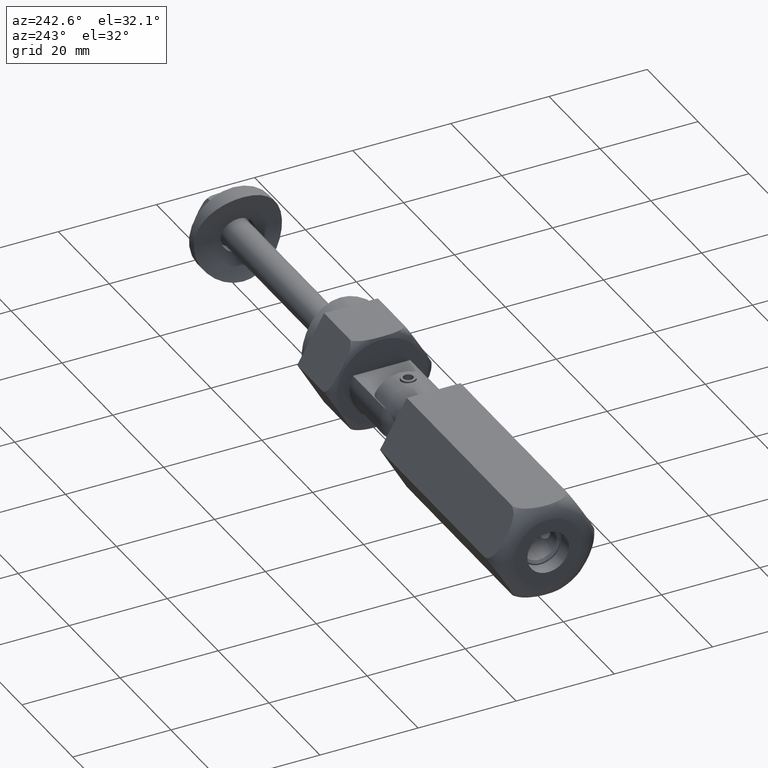
[diagram: clean part render]
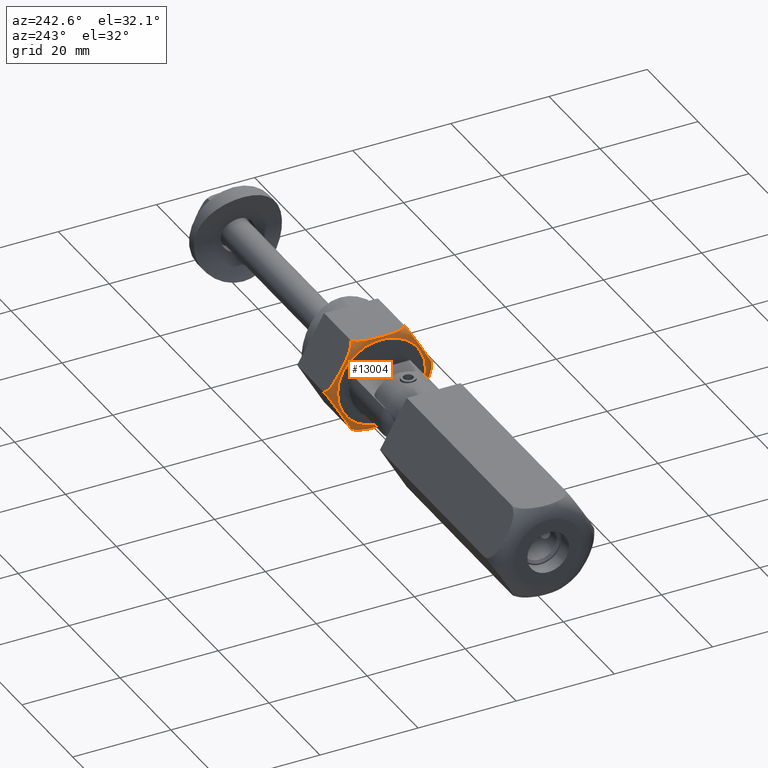
[diagram: same view with one face highlighted and labeled with its STEP entity id]
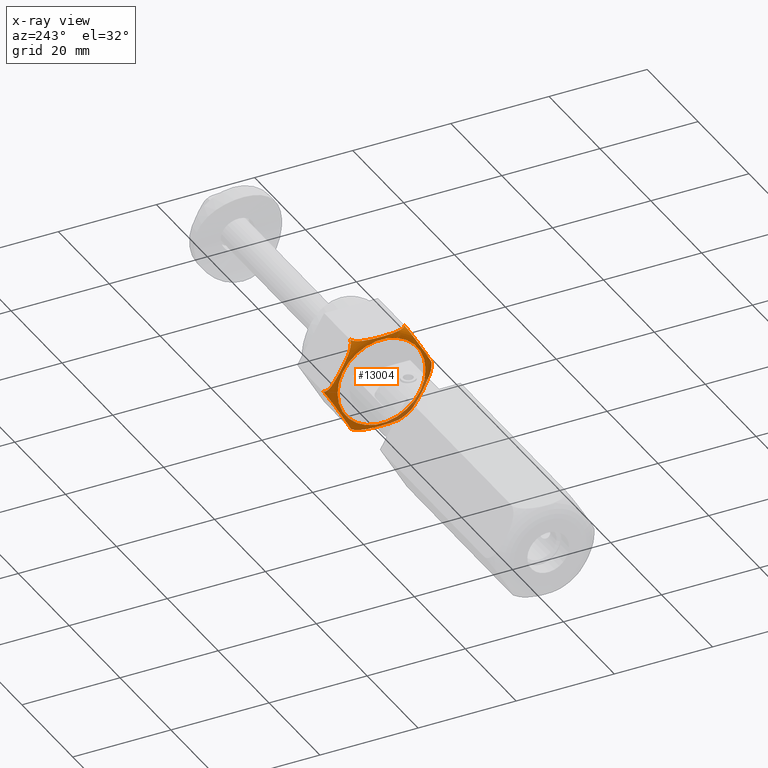
[diagram: x-ray of the same camera — body ghosted, the highlighted face saturated]
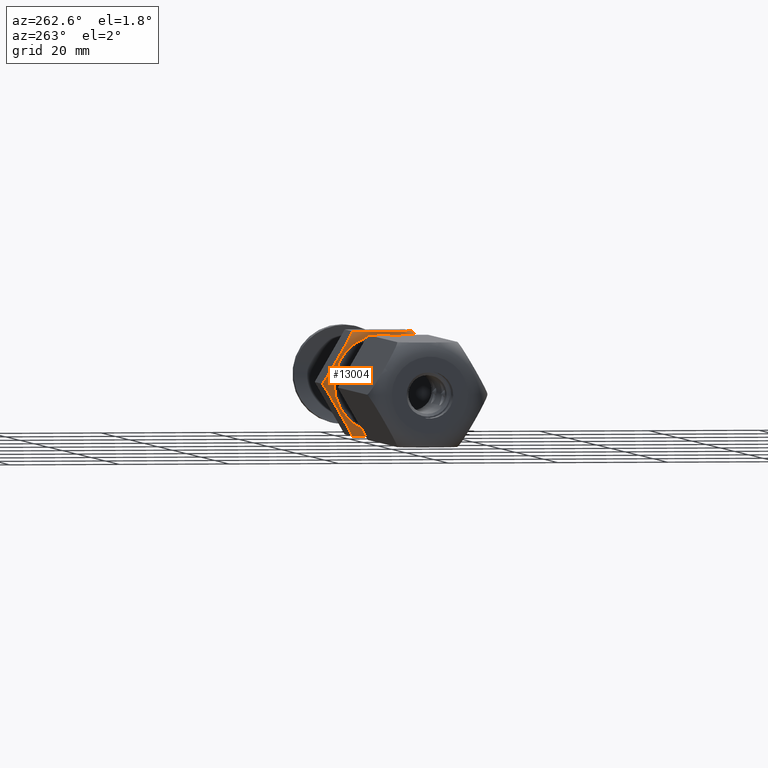
[diagram: same view with one face highlighted and labeled with its STEP entity id]
A machine part, auxiliary view. The second image highlights one B-rep face of the part: STEP entity #13004.
The next image is the same camera in x-ray: the body ghosted, the highlighted face saturated — about 15% of this face is hidden behind the body in this view.
A second angle (auxiliary view) of the same face is appended — the face is thin or edge-on in the first view.
In plain terms, the highlighted toroidal blend (fillet) surface has major radius 8.9697 mm and minor (blend) radius 2 mm.
Its self-contained STEP definition (entity closure, byte-faithful):
#15 = CARTESIAN_POINT ( 'NONE',  ( -9.500000000000003553, -5.484827557301452217, 10.00000000000000178 ) ) ;
#35 = DIRECTION ( 'NONE',  ( 1.873544649899895331E-30, -1.000000000000000000, 1.933991278162539487E-16 ) ) ;
#166 = CARTESIAN_POINT ( 'NONE',  ( 9.500000000000003553, -5.484827557301452217, 10.00000000000000178 ) ) ;
#289 = EDGE_CURVE ( 'NONE', #10608, #5102, #946, .T. ) ;
#311 = CARTESIAN_POINT ( 'NONE',  ( 9.500000000000005329, 5.484827557301866108, 10.13299068077875020 ) ) ;
#343 = CARTESIAN_POINT ( 'NONE',  ( -0.1658821027371391865, -10.87388303793384381, 10.61818887033521541 ) ) ;
#402 = CARTESIAN_POINT ( 'NONE',  ( -5.649394348940254496, -7.707975766483879276, 11.91821024608994684 ) ) ;
#661 = CARTESIAN_POINT ( 'NONE',  ( 0.000000000000000000, 1.734723475976820899E-15, 10.00000000000000178 ) ) ;
#758 = CARTESIAN_POINT ( 'NONE',  ( -9.500000000000000000, 4.125143150814394311, 11.44828971366972503 ) ) ;
#884 = EDGE_CURVE ( 'NONE', #17068, #9217, #6788, .T. ) ;
#946 = B_SPLINE_CURVE_WITH_KNOTS ( 'NONE', 3,
 ( #5994, #17103, #2786, #12630, #7401, #17167, #4218, #8693, #18044, #9680, #17040, #1323, #12979, #402, #4110, #11100, #13887, #2727, #5936, #8399, #5528, #13949, #6929, #16672, #15632, #343, #1794, #8340, #3144, #6256 ),
 .UNSPECIFIED., .F., .F.,
 ( 4, 2, 2, 2, 2, 2, 2, 2, 2, 2, 2, 2, 2, 2, 4 ),
 ( 1.969591725494877418E-07, 0.0003952753807345897965, 0.0007903538022966301053, 0.001580510645420713650, 0.002370667488544796978, 0.003160824331668880740, 0.004741138017917046962, 0.006321451704165214486, 0.007901765390413380274, 0.009482079076661547798, 0.01027223591978563069, 0.01106239276290971185, 0.01185254960603379301, 0.01224762802759583359, 0.01264270644915787070 ),
 .UNSPECIFIED. ) ;
#982 = CARTESIAN_POINT ( 'NONE',  ( 1.169984511393022064, 10.29416424200243796, 11.44500298372939007 ) ) ;
#1035 = CARTESIAN_POINT ( 'NONE',  ( 3.839100725947918846, 8.753149277030784603, 11.91782240567439466 ) ) ;
#1057 = B_SPLINE_CURVE_WITH_KNOTS ( 'NONE', 3,
 ( #9535, #12421, #2692, #16576, #12486, #2579, #3962, #17953, #5372, #15130, #8191, #11008, #5495, #13806, #5433, #8248, #9655, #6898, #3222, #1699, #17261, #14388, #13005, #17069, #4610, #11476, #4483, #11660, #2813, #10180, #17004, #7363, #311, #14270 ),
 .UNSPECIFIED., .F., .F.,
 ( 4, 2, 2, 2, 2, 2, 2, 2, 2, 2, 2, 2, 2, 2, 2, 2, 4 ),
 ( 0.01857099641490357611, 0.01895853181750300695, 0.01934606722010244126, 0.01973360262270187210, 0.02012113802530130294, 0.02089620883050016809, 0.02167127963569903323, 0.02322142124609676353, 0.02399649205129562868, 0.02477156285649449036, 0.02632170446689222065, 0.02787184607728994748, 0.02864691688248881263, 0.02942198768768767431, 0.03019705849288653599, 0.03058459389548596682, 0.03097212929808539766 ),
 .UNSPECIFIED. ) ;
#1169 = CARTESIAN_POINT ( 'NONE',  ( -1.181243662208775413, 10.28766376824814799, 11.45004439842704258 ) ) ;
#1288 = CARTESIAN_POINT ( 'NONE',  ( 7.806255641895609837E-15, 10.96965511460292220, 10.00000000000000178 ) ) ;
#1323 = CARTESIAN_POINT ( 'NONE',  ( -7.000404198993338767, -6.927969865877898314, 11.81164600213924132 ) ) ;
#1402 = CARTESIAN_POINT ( 'NONE',  ( -0.5732801973704011456, 10.63867163833003993, 11.09352661582058275 ) ) ;
#1608 = CARTESIAN_POINT ( 'NONE',  ( 6.563988900393465720, -7.179934356003054852, 11.85829195902210209 ) ) ;
#1623 = CARTESIAN_POINT ( 'NONE',  ( 2.948357487886922979, -9.267420125304159484, 11.85946668466850973 ) ) ;
#1683 = CARTESIAN_POINT ( 'NONE',  ( 0.5732801973704018117, -10.63867163833003460, 11.09352661582057564 ) ) ;
#1699 = CARTESIAN_POINT ( 'NONE',  ( 9.500000000000001776, 0.5290473359081402371, 11.92826226710726978 ) ) ;
#1794 = CARTESIAN_POINT ( 'NONE',  ( -0.1065158824119455117, -10.90815814121936711, 10.50616458219464810 ) ) ;
#1910 = ORIENTED_EDGE ( 'NONE', *, *, #10591, .T. ) ;
#2196 = CARTESIAN_POINT ( 'NONE',  ( 9.391332762082592822, 5.547566616365181780, 10.51096866074481184 ) ) ;
#2330 = EDGE_CURVE ( 'NONE', #10419, #5575, #1057, .T. ) ;
#2400 = CARTESIAN_POINT ( 'NONE',  ( -9.499999999999996447, 0.2507175328487242227, 11.92847003835742292 ) ) ;
#2443 = CARTESIAN_POINT ( 'NONE',  ( 0.1658821027371622236, 10.87388303793385269, 10.61818887033519943 ) ) ;
#2577 = CARTESIAN_POINT ( 'NONE',  ( -7.016375749902081793, 6.918748686661409408, 11.80944225031881345 ) ) ;
#2579 = CARTESIAN_POINT ( 'NONE',  ( 9.500000000000001776, -5.124821269657942935, 10.82708440335645861 ) ) ;
#2689 = CARTESIAN_POINT ( 'NONE',  ( -8.936578034186762665, 5.810119380931117128, 11.08564774292462651 ) ) ;
#2692 = CARTESIAN_POINT ( 'NONE',  ( 9.500000000000000000, -5.457891616453397710, 10.26364160934124570 ) ) ;
#2727 = CARTESIAN_POINT ( 'NONE',  ( -2.936011099606518737, -9.274548315901329332, 11.85829195902211453 ) ) ;
#2750 = CARTESIAN_POINT ( 'NONE',  ( -2.948357487886929196, 9.267420125304159484, 11.85946668466851506 ) ) ;
#2786 = CARTESIAN_POINT ( 'NONE',  ( -9.476698668191080088, -5.498280587493810323, 10.26401890429811203 ) ) ;
#2811 = CARTESIAN_POINT ( 'NONE',  ( -0.3864712770007672771, 10.74652581879247215, 10.93279771862619931 ) ) ;
#2813 = CARTESIAN_POINT ( 'NONE',  ( 9.500000000000000000, 5.037181874790387148, 10.93441831032562739 ) ) ;
#2850 = CARTESIAN_POINT ( 'NONE',  ( 7.680642201204809005, -6.535234272188143123, 11.66489135380609099 ) ) ;
#2979 = CARTESIAN_POINT ( 'NONE',  ( 0.02330133180896246797, -10.95620208441053833, 10.26401890429809605 ) ) ;
#3034 = CARTESIAN_POINT ( 'NONE',  ( 0.3864712770007704967, -10.74652581879246682, 10.93279771862620287 ) ) ;
#3144 = CARTESIAN_POINT ( 'NONE',  ( 2.674167717776553178E-14, -10.96965511460288845, 10.13272897949968154 ) ) ;
#3222 = CARTESIAN_POINT ( 'NONE',  ( 9.500000000000001776, -0.2507175328486965227, 11.92847003835742470 ) ) ;
#3488 = CARTESIAN_POINT ( 'NONE',  ( -9.499999999999998224, -5.289203700992483270, 10.62443085539259258 ) ) ;
#3533 = CARTESIAN_POINT ( 'NONE',  ( -8.458740912265442366E-16, -10.96965511460292042, 10.00000000000000888 ) ) ;
#3551 = CARTESIAN_POINT ( 'NONE',  ( -9.499999999999996447, -5.359079409997257848, 10.51121772928335574 ) ) ;
#3595 = CARTESIAN_POINT ( 'NONE',  ( 4.291819203077502642, 8.491772142392902012, 11.92829858589939285 ) ) ;
#3654 = CARTESIAN_POINT ( 'NONE',  ( 1.600318389884161974, 10.04571086141416458, 11.60465455900880727 ) ) ;
#3728 = CARTESIAN_POINT ( 'NONE',  ( -9.499999999999998224, -1.047752005099189532, 11.91781931539892803 ) ) ;
#3731 = EDGE_CURVE ( 'NONE', #12344, #12344, #18066, .T. ) ;
#3733 = CARTESIAN_POINT ( 'NONE',  ( 1.680504935141154557E-29, -8.969655114602923973, 12.00000000000001243 ) ) ;
#3824 = CARTESIAN_POINT ( 'NONE',  ( 7.806255641895609837E-15, 10.96965511460292220, 10.00000000000000178 ) ) ;
#3872 = FACE_OUTER_BOUND ( 'NONE', #5635, .T. ) ;
#3962 = CARTESIAN_POINT ( 'NONE',  ( 9.500000000000001776, -5.028137507378883875, 10.91961270323325550 ) ) ;
#4028 = CARTESIAN_POINT ( 'NONE',  ( 0.000000000000000000, 1.734723475976820899E-15, 12.00000000000001066 ) ) ;
#4110 = CARTESIAN_POINT ( 'NONE',  ( -5.196409486482185258, -7.969506698762873320, 11.92850409199470718 ) ) ;
#4130 = ORIENTED_EDGE ( 'NONE', *, *, #3731, .F. ) ;
#4218 = CARTESIAN_POINT ( 'NONE',  ( -8.926719802629611067, -5.815811033574326494, 11.09352661582061295 ) ) ;
#4352 = CARTESIAN_POINT ( 'NONE',  ( 0.9690206753403753925, -10.41019076684484190, 11.35117518770044143 ) ) ;
#4406 = CARTESIAN_POINT ( 'NONE',  ( 4.303590513517798755, -8.484975973141512640, 11.92850409199469297 ) ) ;
#4426 = CARTESIAN_POINT ( 'NONE',  ( -9.500000000000000000, 5.484827557301451328, 10.13077843620345142 ) ) ;
#4450 = CARTESIAN_POINT ( 'NONE',  ( 9.119513844951633530, -5.704501341341597254, 10.92654201973941319 ) ) ;
#4483 = CARTESIAN_POINT ( 'NONE',  ( 9.500000000000000000, 4.362014245702686033, 11.35296320504827605 ) ) ;
#4552 = ORIENTED_EDGE ( 'NONE', *, *, #2330, .T. ) ;
#4610 = CARTESIAN_POINT ( 'NONE',  ( 9.500000000000001776, 3.613146068529599297, 11.61102667167255120 ) ) ;
#4880 = CARTESIAN_POINT ( 'NONE',  ( -9.500000000000001776, 2.079325486704882486, 11.85956407593015882 ) ) ;
#4947 = CARTESIAN_POINT ( 'NONE',  ( -9.500000000000001776, -2.081003090834873337, 11.85930006090546662 ) ) ;
#5064 = CARTESIAN_POINT ( 'NONE',  ( 5.649394348940269595, 7.707975766483889046, 11.91821024608994328 ) ) ;
#5077 = CARTESIAN_POINT ( 'NONE',  ( -9.500000000000000000, -5.037181874790388925, 10.93441831032563627 ) ) ;
#5102 = VERTEX_POINT ( 'NONE', #3533 ) ;
#5130 = CARTESIAN_POINT ( 'NONE',  ( -9.499999999999998224, 1.036270980999082436, 11.91322423012082510 ) ) ;
#5233 = CARTESIAN_POINT ( 'NONE',  ( 2.483624250097929309, 9.535733985242977440, 11.80944225031882233 ) ) ;
#5372 = CARTESIAN_POINT ( 'NONE',  ( 9.500000000000001776, -4.713359579045009795, 11.15497760702059082 ) ) ;
#5431 = CARTESIAN_POINT ( 'NONE',  ( -7.680642201204818775, 6.535234272188138682, 11.66489135380609454 ) ) ;
#5433 = CARTESIAN_POINT ( 'NONE',  ( 9.500000000000003553, -2.079325486704869608, 11.85956407593015882 ) ) ;
#5493 = CARTESIAN_POINT ( 'NONE',  ( -4.931129357382995676E-14, 10.96965511460289022, 10.13372363806144882 ) ) ;
#5495 = CARTESIAN_POINT ( 'NONE',  ( 9.500000000000003553, -3.374140253566613623, 11.66714836357255791 ) ) ;
#5528 = CARTESIAN_POINT ( 'NONE',  ( -1.600318389884141546, -10.04571086141415392, 11.60465455900881437 ) ) ;
#5559 = DIRECTION ( 'NONE',  ( -3.532137285691802660E-32, 1.445602896647337931E-16, 1.000000000000000000 ) ) ;
#5575 = VERTEX_POINT ( 'NONE', #7594 ) ;
#5635 = EDGE_LOOP ( 'NONE', ( #4130 ) ) ;
#5725 = CARTESIAN_POINT ( 'NONE',  ( -9.499999999999998224, 5.289953574383708279, 10.62303332752432361 ) ) ;
#5779 = CARTESIAN_POINT ( 'NONE',  ( -9.499999999999996447, 4.370815923867676034, 11.34896284828189827 ) ) ;
#5936 = CARTESIAN_POINT ( 'NONE',  ( -2.483624250097911101, -9.535733985242965005, 11.80944225031883477 ) ) ;
#5994 = CARTESIAN_POINT ( 'NONE',  ( -9.500000000000003553, -5.484827557301452217, 10.00000000000000178 ) ) ;
#6087 = CARTESIAN_POINT ( 'NONE',  ( 9.500000000000003553, 5.484827557301458434, 10.00000000000000178 ) ) ;
#6154 = ORIENTED_EDGE ( 'NONE', *, *, #289, .T. ) ;
#6256 = CARTESIAN_POINT ( 'NONE',  ( -8.458740912265442366E-16, -10.96965511460292042, 10.00000000000000888 ) ) ;
#6290 = CARTESIAN_POINT ( 'NONE',  ( -9.500000000000000000, -5.457177252340527751, 10.26630646300458061 ) ) ;
#6577 = CARTESIAN_POINT ( 'NONE',  ( 0.02249959791435487966, 10.95666496569038095, 10.26022967669229402 ) ) ;
#6716 = CARTESIAN_POINT ( 'NONE',  ( -4.303590513517807636, 8.484975973141505534, 11.92850409199468942 ) ) ;
#6788 = B_SPLINE_CURVE_WITH_KNOTS ( 'NONE', 3,
 ( #1288, #5493, #13970, #15071, #13853, #2811, #1402, #15299, #1169, #12598, #9534, #8124, #2750, #13805, #6716, #13749, #10949, #8189, #2577, #5431, #16463, #11067, #17896, #2689, #18008, #12360, #15182, #16632, #9654, #8306 ),
 .UNSPECIFIED., .F., .F.,
 ( 4, 2, 2, 2, 2, 2, 2, 2, 2, 2, 2, 2, 2, 2, 4 ),
 ( 1.969591725494962651E-07, 0.0003952753807345918565, 0.0007903538022966342252, 0.001580510645420717553, 0.002370667488544800881, 0.003160824331668884209, 0.004741138017917053901, 0.006321451704165223159, 0.007901765390413395887, 0.009482079076661568615, 0.01027223591978565324, 0.01106239276290973787, 0.01185254960603382250, 0.01224762802759586482, 0.01264270644915790540 ),
 .UNSPECIFIED. ) ;
#6898 = CARTESIAN_POINT ( 'NONE',  ( 9.499999999999996447, -0.5138158125260280373, 11.92566080837324805 ) ) ;
#6929 = CARTESIAN_POINT ( 'NONE',  ( -0.9580470941462658763, -10.41652636690118960, 11.34541652004257450 ) ) ;
#6942 = FACE_OUTER_BOUND ( 'NONE', #10255, .T. ) ;
#7050 = CARTESIAN_POINT ( 'NONE',  ( 9.477500402085606623, -5.497817706214038758, 10.26022967669227981 ) ) ;
#7115 = EDGE_CURVE ( 'NONE', #9217, #10608, #14805, .T. ) ;
#7229 = CARTESIAN_POINT ( 'NONE',  ( 0.1086672379174420389, -10.90691605553919530, 10.51096866074480296 ) ) ;
#7363 = CARTESIAN_POINT ( 'NONE',  ( 9.500000000000003553, 5.457177252340531304, 10.26630646300457883 ) ) ;
#7401 = CARTESIAN_POINT ( 'NONE',  ( -9.330242530360049358, -5.582837078095024275, 10.62487409099795954 ) ) ;
#7594 = CARTESIAN_POINT ( 'NONE',  ( 9.500000000000003553, 5.484827557301458434, 10.00000000000000178 ) ) ;
#7866 = CARTESIAN_POINT ( 'NONE',  ( 9.113528722999252096, 5.707956853111911144, 10.93279771862621530 ) ) ;
#7882 = CARTESIAN_POINT ( 'NONE',  ( -9.500000000000001776, 3.628286591201960842, 11.60692640497218520 ) ) ;
#7988 = CARTESIAN_POINT ( 'NONE',  ( 8.530979324659634599, 6.044291905059541392, 11.35117518770046274 ) ) ;
#8044 = CARTESIAN_POINT ( 'NONE',  ( 0.5634219658132312292, 10.64436329097327238, 11.08564774292466559 ) ) ;
#8097 = DIRECTION ( 'NONE',  ( -3.532137285691802660E-32, 1.445602896647337931E-16, 1.000000000000000000 ) ) ;
#8124 = CARTESIAN_POINT ( 'NONE',  ( -2.499595801006658569, 9.526512806026477875, 11.81164600213922888 ) ) ;
#8189 = CARTESIAN_POINT ( 'NONE',  ( -6.563988900393474601, 7.179934356003051299, 11.85829195902209854 ) ) ;
#8191 = CARTESIAN_POINT ( 'NONE',  ( 9.500000000000001776, -4.125143150814381876, 11.44828971366972858 ) ) ;
#8248 = CARTESIAN_POINT ( 'NONE',  ( 9.500000000000000000, -1.297279057749729292, 11.90360101852638053 ) ) ;
#8306 = CARTESIAN_POINT ( 'NONE',  ( -9.499999999999998224, 5.484827557301466427, 10.00000000000000178 ) ) ;
#8340 = CARTESIAN_POINT ( 'NONE',  ( -0.02249959791432860554, -10.95666496569037385, 10.26022967669230113 ) ) ;
#8399 = CARTESIAN_POINT ( 'NONE',  ( -1.819357798795173231, -9.919248399716238396, 11.66489135380611764 ) ) ;
#8581 = CARTESIAN_POINT ( 'NONE',  ( 1.835532337952670234, -9.909910025179684112, 11.66901284663642180 ) ) ;
#8624 = B_SPLINE_CURVE_WITH_KNOTS ( 'NONE', 3,
 ( #6087, #11857, #10802, #2196, #9339, #7866, #9399, #7988, #17577, #14878, #11983, #14813, #17760, #5064, #17699, #3595, #1035, #16147, #5233, #10682, #3654, #982, #9277, #8044, #13373, #2443, #17820, #6577, #12225, #3824 ),
 .UNSPECIFIED., .F., .F.,
 ( 4, 2, 2, 2, 2, 2, 2, 2, 2, 2, 2, 2, 2, 2, 4 ),
 ( 1.969591725494877683E-07, 0.0003952753807345858934, 0.0007903538022966222990, 0.001580510645420703025, 0.002370667488544783534, 0.003160824331668863826, 0.004741138017917020074, 0.006321451704165177189, 0.007901765390413333437, 0.009482079076661490552, 0.01027223591978556998, 0.01106239276290964767, 0.01185254960603372536, 0.01224762802759576767, 0.01264270644915780999 ),
 .UNSPECIFIED. ) ;
#8693 = CARTESIAN_POINT ( 'NONE',  ( -8.530979324659631047, -6.044291905059522740, 11.35117518770046985 ) ) ;
#8701 = CARTESIAN_POINT ( 'NONE',  ( 5.549378705583909493E-14, -10.96965511460288845, 10.13372363806145593 ) ) ;
#9048 = CARTESIAN_POINT ( 'NONE',  ( -9.499999999999994671, 5.028137507378885651, 10.91961270323325550 ) ) ;
#9106 = CARTESIAN_POINT ( 'NONE',  ( -9.500000000000001776, -0.5290473359081147020, 11.92826226710727511 ) ) ;
#9217 = VERTEX_POINT ( 'NONE', #10499 ) ;
#9277 = CARTESIAN_POINT ( 'NONE',  ( 0.9580470941462868595, 10.41652636690119671, 11.34541652004256029 ) ) ;
#9339 = CARTESIAN_POINT ( 'NONE',  ( 9.330242530360045805, 5.582837078095049144, 10.62487409099794533 ) ) ;
#9352 = CARTESIAN_POINT ( 'NONE',  ( -9.499999999999994671, -5.484827557301866996, 10.13299068077874843 ) ) ;
#9399 = CARTESIAN_POINT ( 'NONE',  ( 8.926719802629611067, 5.815811033574344258, 11.09352661582059696 ) ) ;
#9534 = CARTESIAN_POINT ( 'NONE',  ( -1.835532337952676674, 9.909910025179680559, 11.66901284663642357 ) ) ;
#9535 = CARTESIAN_POINT ( 'NONE',  ( 9.500000000000003553, -5.484827557301452217, 10.00000000000000178 ) ) ;
#9654 = CARTESIAN_POINT ( 'NONE',  ( -9.499999999999959144, 5.484827557301525047, 10.13272897949966733 ) ) ;
#9655 = CARTESIAN_POINT ( 'NONE',  ( 9.500000000000000000, -1.036270980999059566, 11.91322423012082510 ) ) ;
#9680 = CARTESIAN_POINT ( 'NONE',  ( -7.884282948800615642, -6.417662231745680401, 11.60944821489947820 ) ) ;
#9966 = CARTESIAN_POINT ( 'NONE',  ( 8.936578034186757336, -5.810119380931118904, 11.08564774292462296 ) ) ;
#9980 = CARTESIAN_POINT ( 'NONE',  ( 2.499595801006651019, -9.526512806026477875, 11.81164600213922533 ) ) ;
#10180 = CARTESIAN_POINT ( 'NONE',  ( 9.500000000000003553, 5.289203700992484158, 10.62443085539259258 ) ) ;
#10255 = EDGE_LOOP ( 'NONE', ( #4552, #16134, #11860, #11208, #6154, #1910 ) ) ;
#10419 = VERTEX_POINT ( 'NONE', #17587 ) ;
#10499 = CARTESIAN_POINT ( 'NONE',  ( -9.499999999999998224, 5.484827557301466427, 10.00000000000000178 ) ) ;
#10518 = CARTESIAN_POINT ( 'NONE',  ( -9.499999999999998224, -3.613146068529590416, 11.61102667167255298 ) ) ;
#10591 = EDGE_CURVE ( 'NONE', #5102, #10419, #17504, .T. ) ;
#10608 = VERTEX_POINT ( 'NONE', #15 ) ;
#10682 = CARTESIAN_POINT ( 'NONE',  ( 1.819357798795192327, 9.919248399716249054, 11.66489135380610875 ) ) ;
#10758 = CARTESIAN_POINT ( 'NONE',  ( -9.500000000000000000, -4.819950451994345464, 11.09556376097754793 ) ) ;
#10802 = CARTESIAN_POINT ( 'NONE',  ( 9.476698668191071206, 5.498280587493835192, 10.26401890429810315 ) ) ;
#10949 = CARTESIAN_POINT ( 'NONE',  ( -5.660899274052093588, 7.701333394873603133, 11.91782240567438755 ) ) ;
#11008 = CARTESIAN_POINT ( 'NONE',  ( 9.500000000000000000, -3.628286591201944855, 11.60692640497217987 ) ) ;
#11067 = CARTESIAN_POINT ( 'NONE',  ( -8.330015488606981933, 6.160318429901947113, 11.44500298372936520 ) ) ;
#11100 = CARTESIAN_POINT ( 'NONE',  ( -4.291819203077478662, -8.491772142392893130, 11.92829858589939462 ) ) ;
#11208 = ORIENTED_EDGE ( 'NONE', *, *, #7115, .T. ) ;
#11209 = CARTESIAN_POINT ( 'NONE',  ( 7.016375749902077352, -6.918748686661411185, 11.80944225031881523 ) ) ;
#11458 = CARTESIAN_POINT ( 'NONE',  ( 1.181243662208770973, -10.28766376824814799, 11.45004439842704080 ) ) ;
#11476 = CARTESIAN_POINT ( 'NONE',  ( 9.500000000000001776, 4.115442575129678815, 11.45208525298511226 ) ) ;
#11660 = CARTESIAN_POINT ( 'NONE',  ( 9.500000000000000000, 4.819950451994345464, 11.09556376097753905 ) ) ;
#11857 = CARTESIAN_POINT ( 'NONE',  ( 9.499999999999978684, 5.484827557301485079, 10.13372363806145771 ) ) ;
#11860 = ORIENTED_EDGE ( 'NONE', *, *, #884, .T. ) ;
#11940 = EDGE_CURVE ( 'NONE', #5575, #17068, #8624, .T. ) ;
#11983 = CARTESIAN_POINT ( 'NONE',  ( 7.664467662047331764, 6.544572646724702736, 11.66901284663643423 ) ) ;
#12000 = CARTESIAN_POINT ( 'NONE',  ( -9.500000000000001776, 2.600874825918309874, 11.81165766095662306 ) ) ;
#12118 = CARTESIAN_POINT ( 'NONE',  ( -9.500000000000001776, 1.297279057749747722, 11.90360101852638408 ) ) ;
#12225 = CARTESIAN_POINT ( 'NONE',  ( -6.988021814847979769E-16, 10.96965511460289555, 10.13272897949967621 ) ) ;
#12344 = VERTEX_POINT ( 'NONE', #3733 ) ;
#12360 = CARTESIAN_POINT ( 'NONE',  ( -9.334117897262800057, 5.580599633970563467, 10.61818887033517278 ) ) ;
#12421 = CARTESIAN_POINT ( 'NONE',  ( 9.500000000000000000, -5.484827557301447776, 10.13077843620344609 ) ) ;
#12486 = CARTESIAN_POINT ( 'NONE',  ( 9.500000000000001776, -5.289953574383703838, 10.62303332752432894 ) ) ;
#12598 = CARTESIAN_POINT ( 'NONE',  ( -1.615717051199385468, 10.03682044015868868, 11.60944821489944978 ) ) ;
#12630 = CARTESIAN_POINT ( 'NONE',  ( -9.391332762082594598, -5.547566616365156911, 10.51096866074482072 ) ) ;
#12691 = CARTESIAN_POINT ( 'NONE',  ( 8.541952905853710476, -6.037956305003198132, 11.34541652004253898 ) ) ;
#12717 = CARTESIAN_POINT ( 'NONE',  ( -9.499999999999998224, 4.713359579045017789, 11.15497760702059082 ) ) ;
#12740 = CARTESIAN_POINT ( 'NONE',  ( 8.330015488606980156, -6.160318429901950665, 11.44500298372936520 ) ) ;
#12753 = CARTESIAN_POINT ( 'NONE',  ( 0.1697574696399776484, -10.87164559380933149, 10.62487409099792934 ) ) ;
#12808 = CARTESIAN_POINT ( 'NONE',  ( 3.850605651059737511, -8.746506905420497802, 11.91821024608993795 ) ) ;
#12871 = CARTESIAN_POINT ( 'NONE',  ( 5.208180796922499134, -7.962710529511486612, 11.92829858589937508 ) ) ;
#12979 = CARTESIAN_POINT ( 'NONE',  ( -6.551642512113065031, -7.187062546600211377, 11.85946668466852927 ) ) ;
#13004 = ADVANCED_FACE ( 'NONE', ( #3872, #6942 ), #14573, .T. ) ;
#13005 = CARTESIAN_POINT ( 'NONE',  ( 9.500000000000003553, 2.595621596405288223, 11.81187618399409445 ) ) ;
#13128 = AXIS2_PLACEMENT_3D ( 'NONE', #4028, #5559, #35 ) ;
#13373 = CARTESIAN_POINT ( 'NONE',  ( 0.3804861550483334409, 10.74998133056280736, 10.92654201973943984 ) ) ;
#13443 = CARTESIAN_POINT ( 'NONE',  ( -9.500000000000000000, -2.595621596405271791, 11.81187618399410155 ) ) ;
#13749 = CARTESIAN_POINT ( 'NONE',  ( -5.208180796922509792, 7.962710529511486612, 11.92829858589938219 ) ) ;
#13805 = CARTESIAN_POINT ( 'NONE',  ( -3.850605651059740620, 8.746506905420494249, 11.91821024608993618 ) ) ;
#13806 = CARTESIAN_POINT ( 'NONE',  ( 9.500000000000003553, -2.600874825918309430, 11.81165766095662129 ) ) ;
#13853 = CARTESIAN_POINT ( 'NONE',  ( -0.1697574696399728744, 10.87164559380933504, 10.62487409099792579 ) ) ;
#13887 = CARTESIAN_POINT ( 'NONE',  ( -3.839100725947899750, -8.753149277030773945, 11.91782240567439821 ) ) ;
#13949 = CARTESIAN_POINT ( 'NONE',  ( -1.169984511393002968, -10.29416424200243085, 11.44500298372940073 ) ) ;
#13970 = CARTESIAN_POINT ( 'NONE',  ( -0.02330133180895586908, 10.95620208441054544, 10.26401890429809249 ) ) ;
#14010 = CARTESIAN_POINT ( 'NONE',  ( 7.899681610115841579, -6.408771810490221377, 11.60465455900878062 ) ) ;
#14119 = CARTESIAN_POINT ( 'NONE',  ( 9.393484117587989957, -5.546324530685045495, 10.50616458219462501 ) ) ;
#14134 = CARTESIAN_POINT ( 'NONE',  ( 1.615717051199379917, -10.03682044015869756, 11.60944821489945689 ) ) ;
#14154 = CARTESIAN_POINT ( 'NONE',  ( -9.499999999999998224, 5.124821269657948264, 10.82708440335646038 ) ) ;
#14254 = CARTESIAN_POINT ( 'NONE',  ( 5.660899274052085595, -7.701333394873609350, 11.91782240567438755 ) ) ;
#14270 = CARTESIAN_POINT ( 'NONE',  ( 9.500000000000003553, 5.484827557301458434, 10.00000000000000178 ) ) ;
#14388 = CARTESIAN_POINT ( 'NONE',  ( 9.500000000000000000, 2.081003090834890656, 11.85930006090545952 ) ) ;
#14527 = CARTESIAN_POINT ( 'NONE',  ( -9.499999999999998224, 5.457891616453402150, 10.26364160934124925 ) ) ;
#14573 = TOROIDAL_SURFACE ( 'NONE', #17509, 8.969655114602890222, 2.000000000000000000 ) ;
#14588 = CARTESIAN_POINT ( 'NONE',  ( -9.499999999999998224, 5.484827557301466427, 10.00000000000000178 ) ) ;
#14652 = CARTESIAN_POINT ( 'NONE',  ( -9.500000000000001776, -3.359755694875479204, 11.67020556384813723 ) ) ;
#14710 = CARTESIAN_POINT ( 'NONE',  ( -9.500000000000000000, -4.115442575129673486, 11.45208525298511759 ) ) ;
#14776 = CARTESIAN_POINT ( 'NONE',  ( -9.499999999999998224, -4.362014245702683368, 11.35296320504828138 ) ) ;
#14805 = B_SPLINE_CURVE_WITH_KNOTS ( 'NONE', 3,
 ( #14588, #4426, #14527, #15908, #5725, #14154, #9048, #15601, #12717, #5779, #758, #7882, #16036, #12000, #4880, #12118, #5130, #16282, #2400, #9106, #3728, #4947, #13443, #14652, #10518, #14710, #14776, #10758, #5077, #3488, #3551, #6290, #9352, #16163 ),
 .UNSPECIFIED., .F., .F.,
 ( 4, 2, 2, 2, 2, 2, 2, 2, 2, 2, 2, 2, 2, 2, 2, 2, 4 ),
 ( 0.01857099641490358652, 0.01895853181750302083, 0.01934606722010245167, 0.01973360262270188598, 0.02012113802530132028, 0.02089620883050018890, 0.02167127963569905405, 0.02322142124609678782, 0.02399649205129565643, 0.02477156285649452158, 0.02632170446689225535, 0.02787184607728998911, 0.02864691688248885426, 0.02942198768768772288, 0.03019705849288659150, 0.03058459389548602581, 0.03097212929808546011 ),
 .UNSPECIFIED. ) ;
#14813 = CARTESIAN_POINT ( 'NONE',  ( 7.000404198993351201, 6.927969865877911637, 11.81164600213923777 ) ) ;
#14878 = CARTESIAN_POINT ( 'NONE',  ( 7.884282948800624524, 6.417662231745696388, 11.60944821489946399 ) ) ;
#15071 = CARTESIAN_POINT ( 'NONE',  ( -0.1086672379174358216, 10.90691605553919885, 10.51096866074479941 ) ) ;
#15130 = CARTESIAN_POINT ( 'NONE',  ( 9.500000000000005329, -4.370815923867674258, 11.34896284828190005 ) ) ;
#15182 = CARTESIAN_POINT ( 'NONE',  ( -9.393484117587989957, 5.546324530685043719, 10.50616458219462679 ) ) ;
#15299 = CARTESIAN_POINT ( 'NONE',  ( -0.9690206753403769468, 10.41019076684484368, 11.35117518770044676 ) ) ;
#15582 = CARTESIAN_POINT ( 'NONE',  ( -8.458740912265442366E-16, -10.96965511460292042, 10.00000000000000888 ) ) ;
#15601 = CARTESIAN_POINT ( 'NONE',  ( -9.500000000000000000, 4.822698219570491496, 11.08309889640788448 ) ) ;
#15632 = CARTESIAN_POINT ( 'NONE',  ( -0.3804861550483099597, -10.74998133056280381, 10.92654201973945050 ) ) ;
#15908 = CARTESIAN_POINT ( 'NONE',  ( -9.499999999999998224, 5.360448292184642582, 10.50866296471581229 ) ) ;
#16036 = CARTESIAN_POINT ( 'NONE',  ( -9.500000000000003553, 3.374140253566622061, 11.66714836357255436 ) ) ;
#16134 = ORIENTED_EDGE ( 'NONE', *, *, #11940, .T. ) ;
#16147 = CARTESIAN_POINT ( 'NONE',  ( 2.936011099606541830, 9.274548315901332884, 11.85829195902210564 ) ) ;
#16163 = CARTESIAN_POINT ( 'NONE',  ( -9.500000000000003553, -5.484827557301452217, 10.00000000000000178 ) ) ;
#16282 = CARTESIAN_POINT ( 'NONE',  ( -9.500000000000000000, 0.5138158125260550158, 11.92566080837324805 ) ) ;
#16463 = CARTESIAN_POINT ( 'NONE',  ( -7.899681610115843355, 6.408771810490220489, 11.60465455900878240 ) ) ;
#16576 = CARTESIAN_POINT ( 'NONE',  ( 9.500000000000000000, -5.360448292184637253, 10.50866296471580696 ) ) ;
#16632 = CARTESIAN_POINT ( 'NONE',  ( -9.477500402085606623, 5.497817706214035205, 10.26022967669228514 ) ) ;
#16672 = CARTESIAN_POINT ( 'NONE',  ( -0.5634219658132111341, -10.64436329097326528, 11.08564774292467270 ) ) ;
#16797 = CARTESIAN_POINT ( 'NONE',  ( 9.334117897262800057, -5.580599633970562579, 10.61818887033516923 ) ) ;
#16913 = CARTESIAN_POINT ( 'NONE',  ( 9.499999999999953815, -5.484827557301528600, 10.13272897949966023 ) ) ;
#17004 = CARTESIAN_POINT ( 'NONE',  ( 9.500000000000005329, 5.359079409997263177, 10.51121772928335396 ) ) ;
#17040 = CARTESIAN_POINT ( 'NONE',  ( -7.664467662047323770, -6.544572646724689413, 11.66901284663644844 ) ) ;
#17068 = VERTEX_POINT ( 'NONE', #17627 ) ;
#17069 = CARTESIAN_POINT ( 'NONE',  ( 9.500000000000001776, 3.359755694875492082, 11.67020556384813190 ) ) ;
#17103 = CARTESIAN_POINT ( 'NONE',  ( -9.499999999999992895, -5.484827557301455769, 10.13372363806145948 ) ) ;
#17167 = CARTESIAN_POINT ( 'NONE',  ( -9.113528722999255649, -5.707956853111891604, 10.93279771862622951 ) ) ;
#17261 = CARTESIAN_POINT ( 'NONE',  ( 9.500000000000000000, 1.047752005099211736, 11.91781931539892625 ) ) ;
#17504 = B_SPLINE_CURVE_WITH_KNOTS ( 'NONE', 3,
 ( #15582, #8701, #2979, #7229, #12753, #3034, #1683, #4352, #11458, #14134, #8581, #9980, #1623, #12808, #4406, #12871, #14254, #1608, #11209, #2850, #14010, #12740, #12691, #9966, #4450, #16797, #14119, #7050, #16913, #166 ),
 .UNSPECIFIED., .F., .F.,
 ( 4, 2, 2, 2, 2, 2, 2, 2, 2, 2, 2, 2, 2, 2, 4 ),
 ( 1.969591725564851869E-07, 0.0003952753807345960849, 0.0007903538022966357431, 0.001580510645420713216, 0.002370667488544790907, 0.003160824331668868163, 0.004741138017917026146, 0.006321451704165184128, 0.007901765390413342111, 0.009482079076661500960, 0.01027223591978557692, 0.01106239276290965287, 0.01185254960603373056, 0.01224762802759576941, 0.01264270644915780652 ),
 .UNSPECIFIED. ) ;
#17509 = AXIS2_PLACEMENT_3D ( 'NONE', #661, #8097, #17927 ) ;
#17577 = CARTESIAN_POINT ( 'NONE',  ( 8.318756337791226585, 6.166818903656237083, 11.45004439842705857 ) ) ;
#17587 = CARTESIAN_POINT ( 'NONE',  ( 9.500000000000003553, -5.484827557301452217, 10.00000000000000178 ) ) ;
#17627 = CARTESIAN_POINT ( 'NONE',  ( 7.806255641895609837E-15, 10.96965511460292220, 10.00000000000000178 ) ) ;
#17699 = CARTESIAN_POINT ( 'NONE',  ( 5.196409486482201245, 7.969506698762882202, 11.92850409199469830 ) ) ;
#17760 = CARTESIAN_POINT ( 'NONE',  ( 6.551642512113081906, 7.187062546600230029, 11.85946668466852749 ) ) ;
#17820 = CARTESIAN_POINT ( 'NONE',  ( 0.1065158824119721986, 10.90815814121936711, 10.50616458219463922 ) ) ;
#17896 = CARTESIAN_POINT ( 'NONE',  ( -8.541952905853714029, 6.037956305003195467, 11.34541652004253542 ) ) ;
#17927 = DIRECTION ( 'NONE',  ( 1.873544649899895681E-30, -1.000000000000000000, 1.445602896647337931E-16 ) ) ;
#17953 = CARTESIAN_POINT ( 'NONE',  ( 9.500000000000003553, -4.822698219570487055, 11.08309889640788803 ) ) ;
#18008 = CARTESIAN_POINT ( 'NONE',  ( -9.119513844951638859, 5.704501341341598142, 10.92654201973941497 ) ) ;
#18044 = CARTESIAN_POINT ( 'NONE',  ( -8.318756337791224809, -6.166818903656222872, 11.45004439842707100 ) ) ;
#18066 = CIRCLE ( 'NONE', #13128, 8.969655114602925750 ) ;